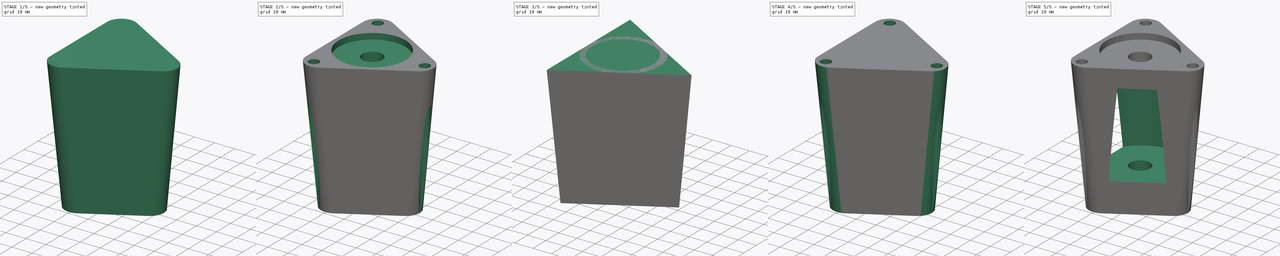
[diagram: build sequence overview — one tinted view per stage of 5, left to right]
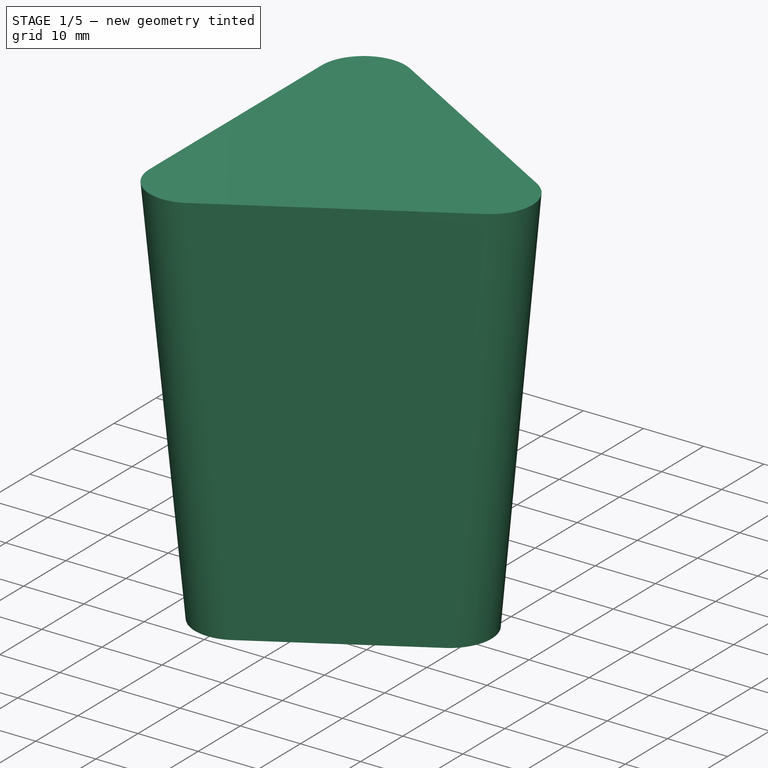
[diagram: stage 1 of 5 — iso view after this stage's code; geometry added in this stage tinted green]
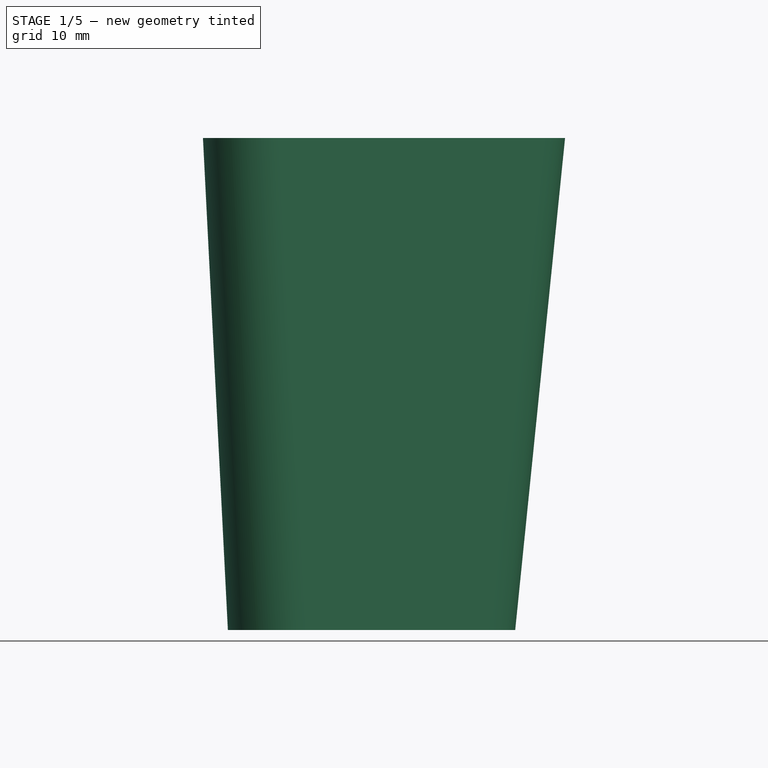
[diagram: stage 1 of 5 — front view after this stage's code; geometry added in this stage tinted green]
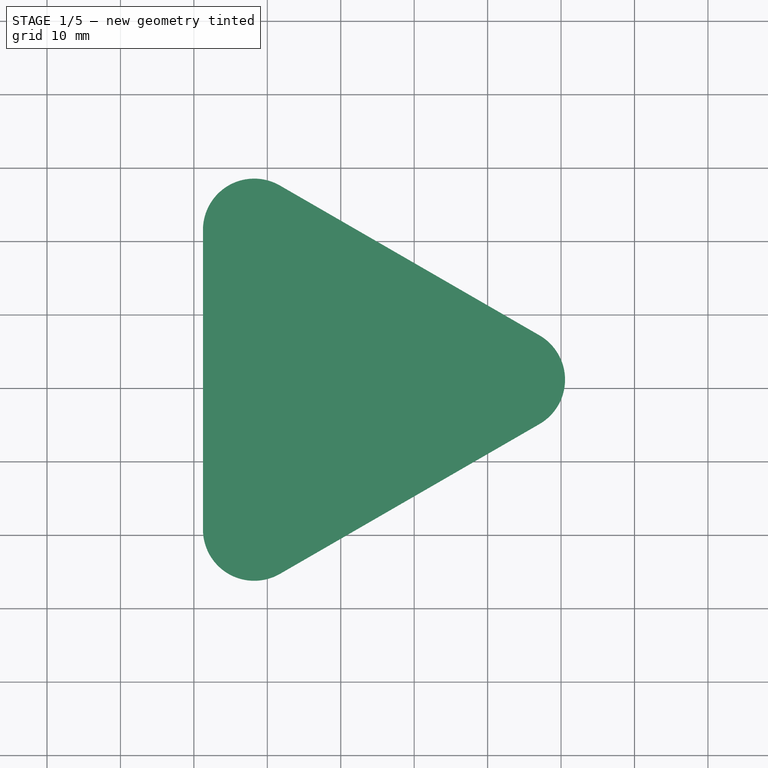
[diagram: stage 1 of 5 — top view after this stage's code; geometry added in this stage tinted green]
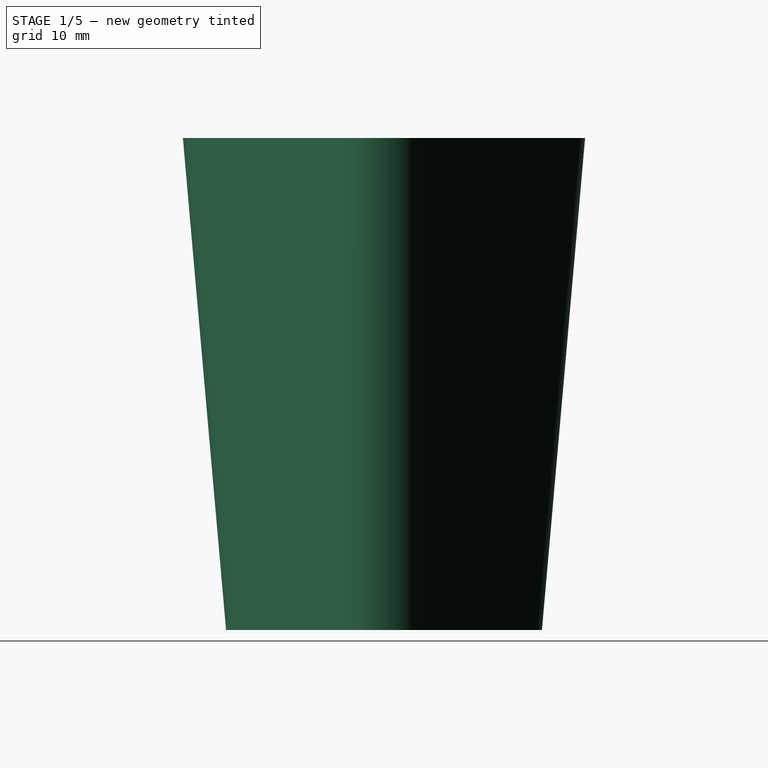
[diagram: stage 1 of 5 — right view after this stage's code; geometry added in this stage tinted green]
FCSTD DOCUMENT  (FreeCAD 0.15R4671 (Git))
Label: Tri-Foot-1
License: All rights reserved
LicenseURL: http://en.wikipedia.org/wiki/All_rights_reserved
objects: Sketcher::SketchObject×14, PartDesign::Pocket×11, PartDesign::Fillet×6, PartDesign::Pad×2, PartDesign::Draft×2, Part::Cut×1, Part::MultiFuse×1
note: 50 computed .brp shape members not serialized (recipe doc carries the construction recipe); baked Part::Feature solids carry a one-line shape summary decoded from their .brp

FEATURE [Sketcher::SketchObject] Sketch  label="base"
  sketch-geometry (4):
    g0: LineSegment StartX=37.5278 StartY=0 StartZ=0 EndX=-18.7639 EndY=32.5 EndZ=0
    g1: LineSegment StartX=-18.7639 StartY=32.5 StartZ=0 EndX=-18.7639 EndY=-32.5 EndZ=0
    g2: LineSegment StartX=-18.7639 StartY=-32.5 StartZ=0 EndX=37.5278 EndY=0 EndZ=0
    g3: Circle [constr] CenterX=0 CenterY=0 CenterZ=0 NormalX=0 NormalY=0 NormalZ=1 Radius=37.5278
  constraints (11):
    c: Coincident(g0,g1)
    c: Coincident(g1,g2)
    c: Coincident(g2,g0)
    c: Equal(g0,g1)
    c: Equal(g0,g2)
    c: PointOnObject(g0,g3)
    c: PointOnObject(g1,g3)
    c: PointOnObject(g2,g3)
    c: DistanceY(g1) = -65
    c: Coincident(g-1,g3)
    c: Vertical(g1)
FEATURE [Sketcher::SketchObject] Sketch001  label="top"
  sketch-geometry (4):
    g0: LineSegment StartX=-10 StartY=10 StartZ=0 EndX=10 EndY=10 EndZ=0
    g1: LineSegment StartX=10 StartY=10 StartZ=0 EndX=10 EndY=-10 EndZ=0
    g2: LineSegment StartX=10 StartY=-10 StartZ=0 EndX=-10 EndY=-10 EndZ=0
    g3: LineSegment StartX=-10 StartY=-10 StartZ=0 EndX=-10 EndY=10 EndZ=0
  constraints (14):
    c: Coincident(g0,g1)
    c: Coincident(g1,g2)
    c: Coincident(g2,g3)
    c: Coincident(g3,g0)
    c: Horizontal(g0)
    c: Horizontal(g2)
    c: Vertical(g1)
    c: Vertical(g3)
    c: Symmetric(g0,g2,g-1)
    c: Symmetric(g0,g0,g-2)
    c: DistanceX(g2) = -20
    c: Equal(g1,g0)
    c: Equal(g0,g3)
    c: Equal(g3,g2)
FEATURE [PartDesign::Pad] Pad
  Length = 67
  Length2 = 100
  Sketch = -> Sketch
  Type = 0
FEATURE [PartDesign::Draft] Draft
  Angle = 2.9
  Base = -> Pad [Face2,Face1,Face3]
  NeutralPlane = -> Pad [Face5]
FEATURE [PartDesign::Fillet] Fillet
  Base = -> Draft [Edge2]
  Radius = 7
FEATURE [PartDesign::Fillet] Fillet001
  Base = -> Fillet [Edge10]
  Radius = 7
FEATURE [PartDesign::Fillet] Fillet002
  Base = -> Fillet001 [Edge7]
  Radius = 7
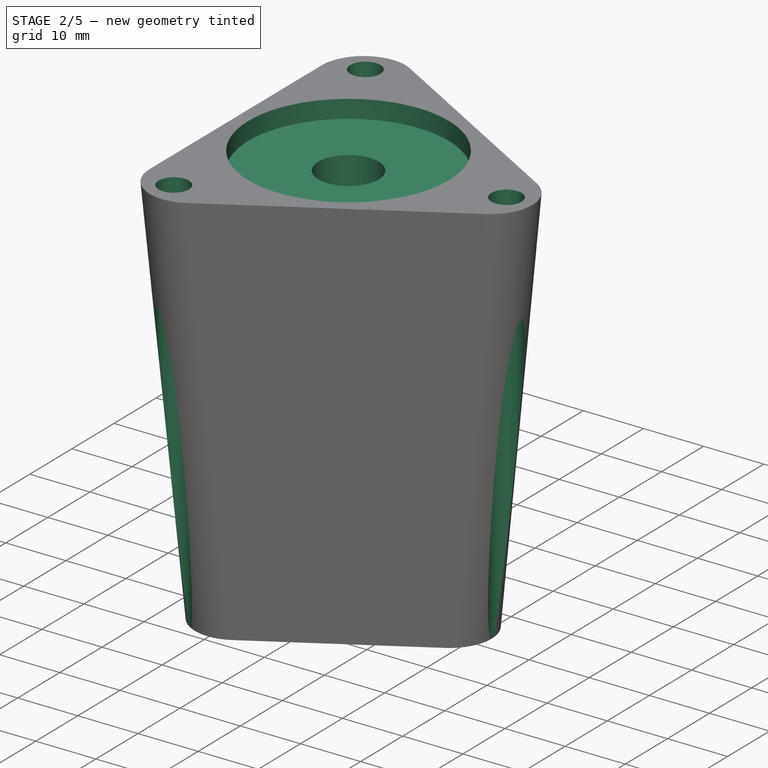
[diagram: stage 2 of 5 — iso view after this stage's code; geometry added in this stage tinted green]
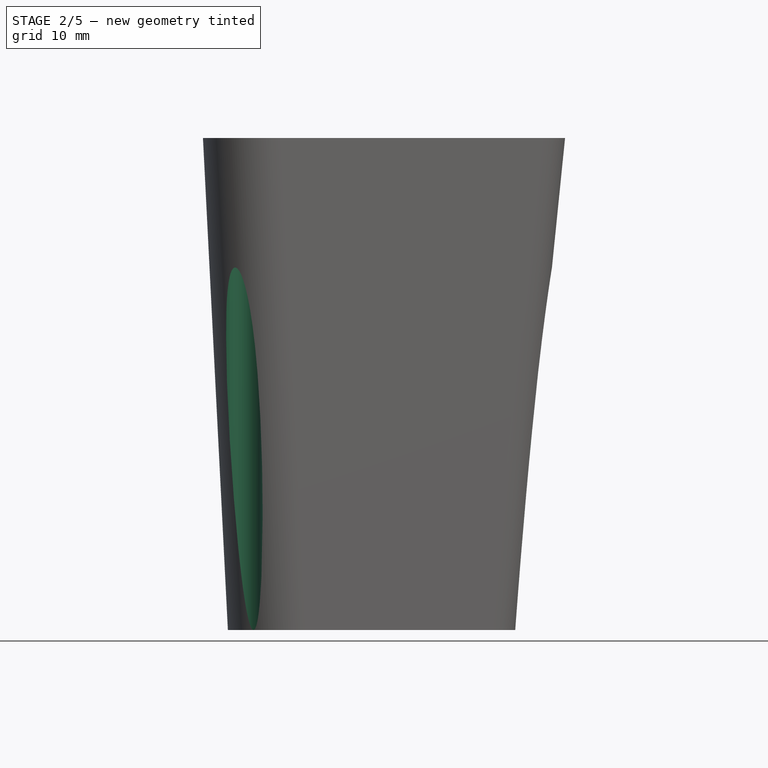
[diagram: stage 2 of 5 — front view after this stage's code; geometry added in this stage tinted green]
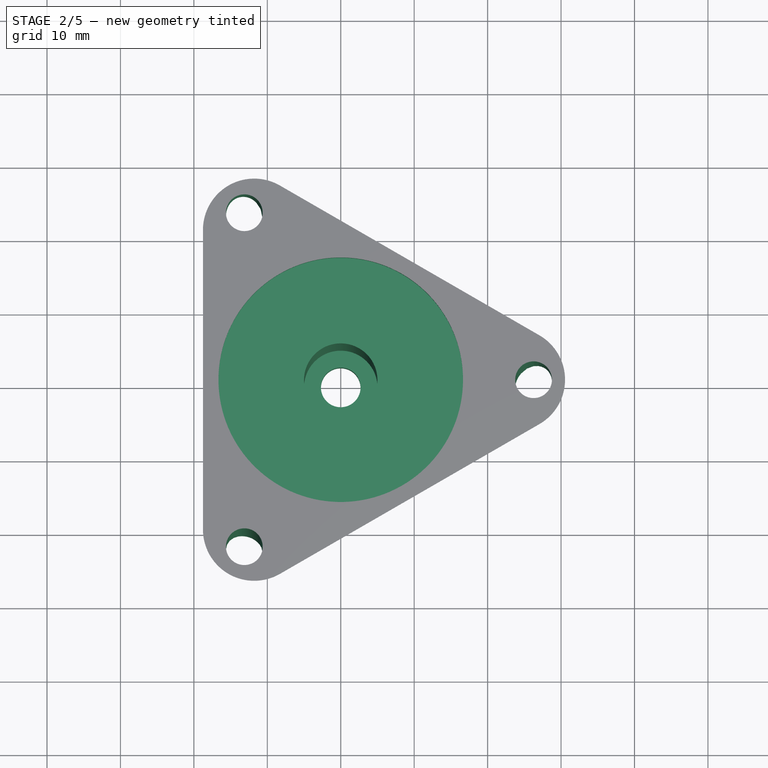
[diagram: stage 2 of 5 — top view after this stage's code; geometry added in this stage tinted green]
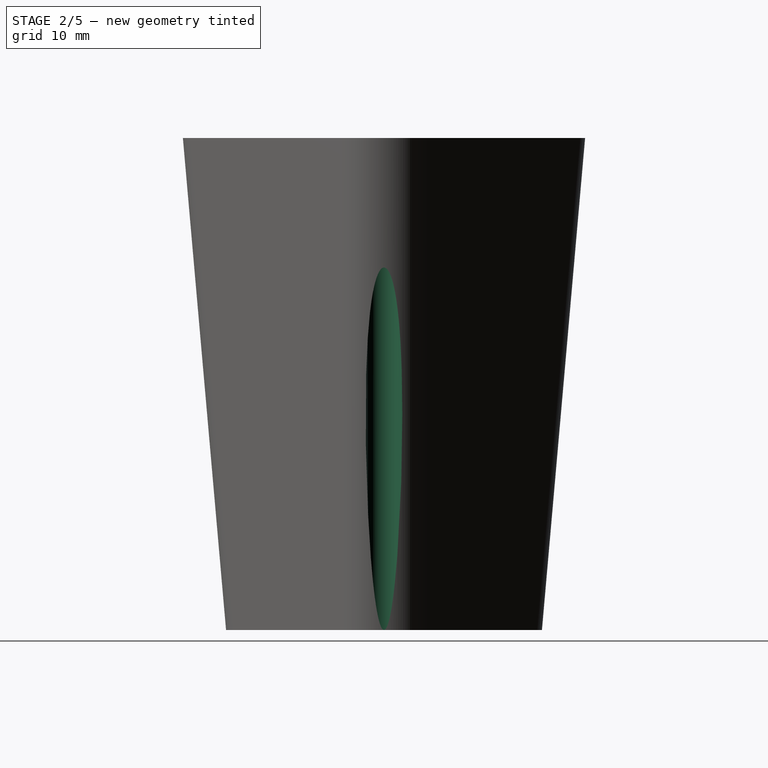
[diagram: stage 2 of 5 — right view after this stage's code; geometry added in this stage tinted green]
FEATURE [Sketcher::SketchObject] Sketch002
  ExternalGeometry = -> [Draft]
  Placement = pos=(0,0,67) rot=(0,0,1;0rad)
  Support = -> Fillet002 [Face8]
  sketch-geometry (7):
    g0: LineSegment [constr] StartX=-13.1294 StartY=22.7408 StartZ=0 EndX=-13.1294 EndY=-22.7408 EndZ=0
    g1: LineSegment [constr] StartX=-13.1294 StartY=-22.7408 StartZ=0 EndX=26.2588 EndY=0 EndZ=0
    g2: LineSegment [constr] StartX=26.2588 StartY=0 StartZ=0 EndX=-13.1294 EndY=22.7408 EndZ=0
    g3: Circle [constr] CenterX=0 CenterY=0 CenterZ=0 NormalX=0 NormalY=0 NormalZ=1 Radius=26.2588
    g4: Circle CenterX=-13.1294 CenterY=-22.7408 CenterZ=0 NormalX=0 NormalY=0 NormalZ=1 Radius=2.5
    g5: Circle CenterX=26.2588 CenterY=0 CenterZ=0 NormalX=0 NormalY=0 NormalZ=1 Radius=2.5
    g6: Circle CenterX=-13.1294 CenterY=22.7408 CenterZ=0 NormalX=0 NormalY=0 NormalZ=1 Radius=2.5
  constraints (16):
    c: Coincident(g0,g1)
    c: Coincident(g1,g2)
    c: Coincident(g2,g0)
    c: Equal(g0,g1)
    c: Equal(g0,g2)
    c: PointOnObject(g0,g3)
    c: PointOnObject(g1,g3)
    c: PointOnObject(g2,g3)
    c: Coincident(g3,g-1)
    c: Radius(g4) = 2.5
    c: Coincident(g0,g4)
    c: Coincident(g0,g6)
    c: Coincident(g1,g5)
    c: Equal(g4,g6)
    c: Equal(g6,g5)
    c: Parallel(g2,g-3)
FEATURE [PartDesign::Pocket] Pocket
  Length = 70
  Sketch = -> Sketch002
  Type = 0
FEATURE [Sketcher::SketchObject] Sketch003
  Placement = pos=(0,0,0) rot=(1,0,0;3.14159rad)
  Support = -> Pocket [Face1]
  sketch-geometry (1):
    g0: Circle CenterX=0 CenterY=0 CenterZ=0 NormalX=0 NormalY=0 NormalZ=1 Radius=2.7
  constraints (2):
    c: Coincident(g0,g-1)
    c: Radius(g0) = 2.7
FEATURE [PartDesign::Pocket] Pocket001
  Length = 70
  Sketch = -> Sketch003
  Type = 0
FEATURE [Sketcher::SketchObject] Sketch004
  Placement = pos=(0,0,67) rot=(0,0,1;0rad)
  Support = -> Pocket001 [Face9]
  sketch-geometry (1):
    g0: Circle CenterX=0 CenterY=0 CenterZ=0 NormalX=0 NormalY=0 NormalZ=1 Radius=5
  constraints (2):
    c: Coincident(g0,g-1)
    c: Radius(g0) = 5
FEATURE [PartDesign::Pocket] Pocket002
  Length = 60
  Sketch = -> Sketch004
  Type = 0
FEATURE [Sketcher::SketchObject] Sketch005
  Placement = pos=(0,0,67) rot=(0,0,1;0rad)
  Support = -> Pocket002 [Face9]
  sketch-geometry (1):
    g0: Circle CenterX=0 CenterY=0 CenterZ=0 NormalX=0 NormalY=0 NormalZ=1 Radius=16.6531
  constraints (1):
    c: Coincident(g0,g-1)
FEATURE [PartDesign::Pocket] Pocket003
  Length = 3
  Sketch = -> Sketch005
  Type = 0
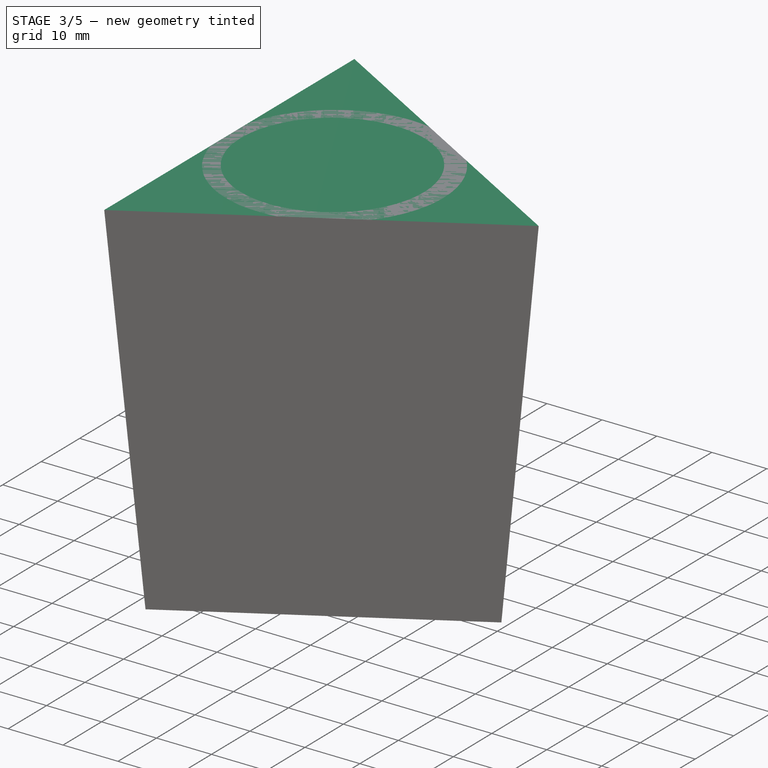
[diagram: stage 3 of 5 — iso view after this stage's code; geometry added in this stage tinted green]
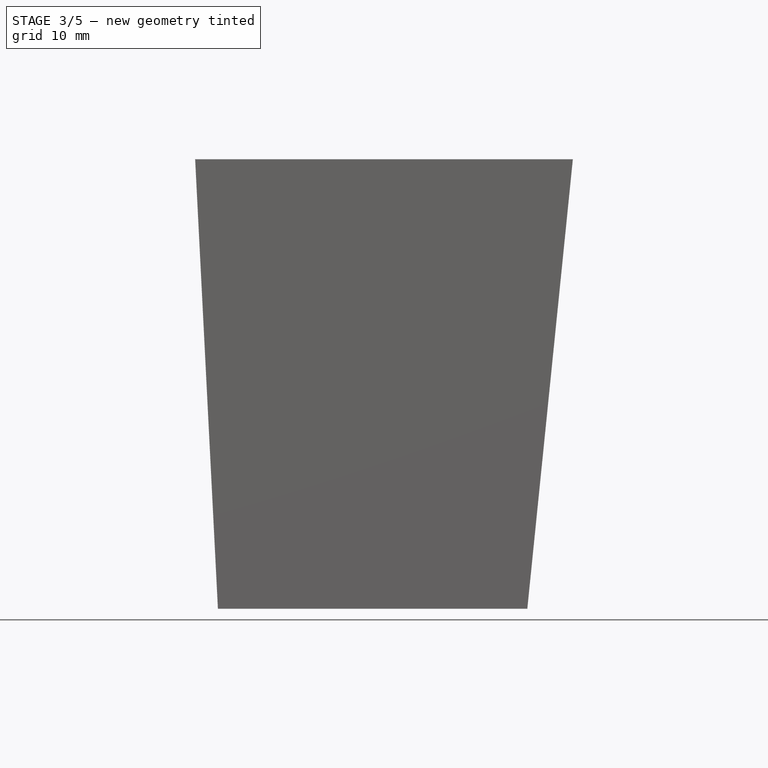
[diagram: stage 3 of 5 — front view after this stage's code; geometry added in this stage tinted green]
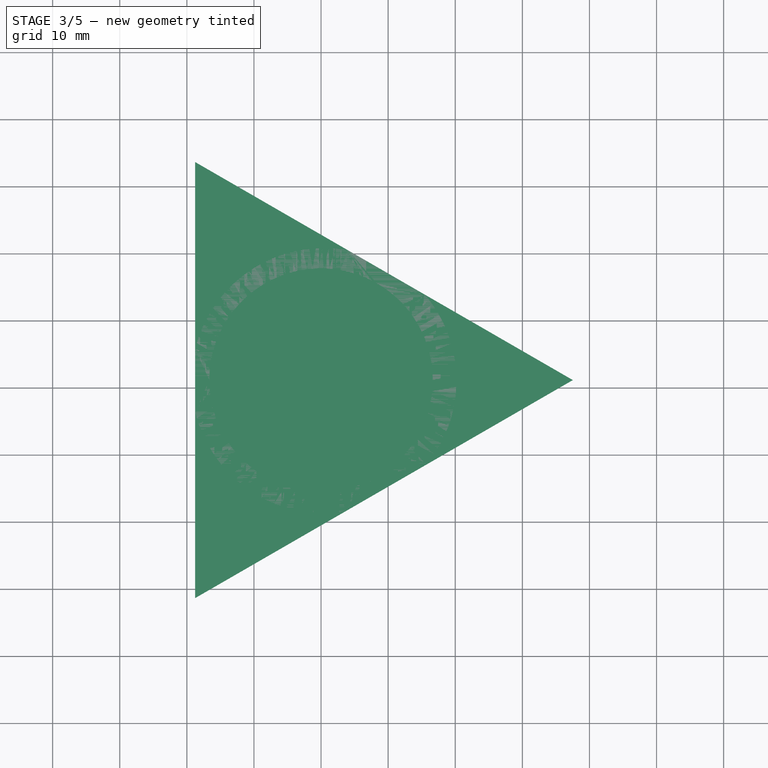
[diagram: stage 3 of 5 — top view after this stage's code; geometry added in this stage tinted green]
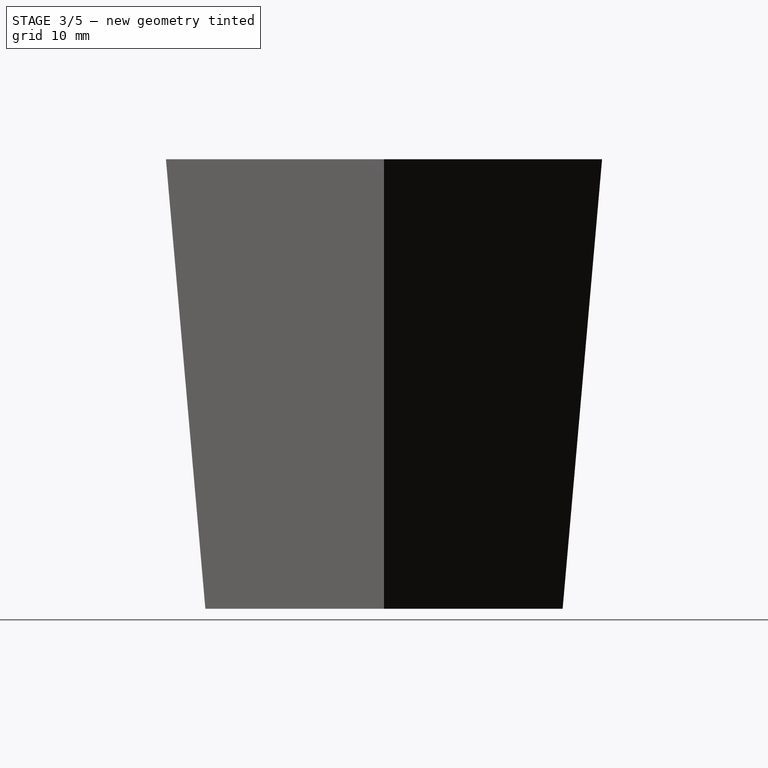
[diagram: stage 3 of 5 — right view after this stage's code; geometry added in this stage tinted green]
FEATURE [Sketcher::SketchObject] Sketch006
  Placement = pos=(0,0,67) rot=(0,0,1;0rad)
  Support = -> Pocket003 [Face9]
  sketch-geometry (1):
    g0: Circle CenterX=0.434124 CenterY=-0.074466 CenterZ=0 NormalX=0 NormalY=0 NormalZ=1 Radius=19.7528
FEATURE [PartDesign::Pocket] Pocket004
  Length = 52
  Sketch = -> Sketch006
  Type = 0
FEATURE [Part::Cut] Cut
  Base = -> Pocket003
  Tool = -> Pocket004
FEATURE [Sketcher::SketchObject] Sketch007  label="base001"
  sketch-geometry (4):
    g0: LineSegment StartX=37.5278 StartY=0 StartZ=0 EndX=-18.7639 EndY=32.5 EndZ=0
    g1: LineSegment StartX=-18.7639 StartY=32.5 StartZ=0 EndX=-18.7639 EndY=-32.5 EndZ=0
    g2: LineSegment StartX=-18.7639 StartY=-32.5 StartZ=0 EndX=37.5278 EndY=0 EndZ=0
    g3: Circle [constr] CenterX=0 CenterY=0 CenterZ=0 NormalX=0 NormalY=0 NormalZ=1 Radius=37.5278
  constraints (11):
    c: Coincident(g0,g1)
    c: Coincident(g1,g2)
    c: Coincident(g2,g0)
    c: Equal(g0,g1)
    c: Equal(g0,g2)
    c: PointOnObject(g0,g3)
    c: PointOnObject(g1,g3)
    c: PointOnObject(g2,g3)
    c: DistanceY(g1) = -65
    c: Coincident(g-1,g3)
    c: Vertical(g1)
FEATURE [PartDesign::Pad] Pad001
  Length = 67
  Length2 = 100
  Sketch = -> Sketch007
  Type = 0
FEATURE [PartDesign::Draft] Draft001
  Angle = 2.9
  Base = -> Pad001 [Face2,Face1,Face3]
  NeutralPlane = -> Pad001 [Face5]
FEATURE [Sketcher::SketchObject] Sketch013
  Placement = pos=(0,0,15) rot=(1,0,0;3.14159rad)
  Support = -> Cut [Face3]
  sketch-geometry (1):
    g0: Circle CenterX=0 CenterY=0 CenterZ=0 NormalX=0 NormalY=0 NormalZ=1 Radius=30.2565
FEATURE [PartDesign::Pocket] Pocket010
  Length = 43
  Sketch = -> Sketch013
  Type = 0
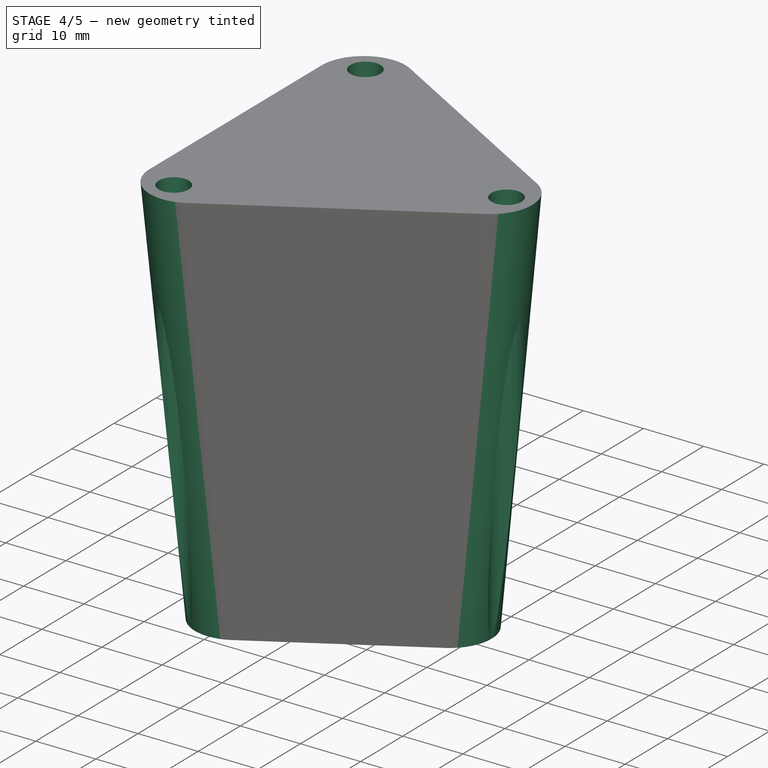
[diagram: stage 4 of 5 — iso view after this stage's code; geometry added in this stage tinted green]
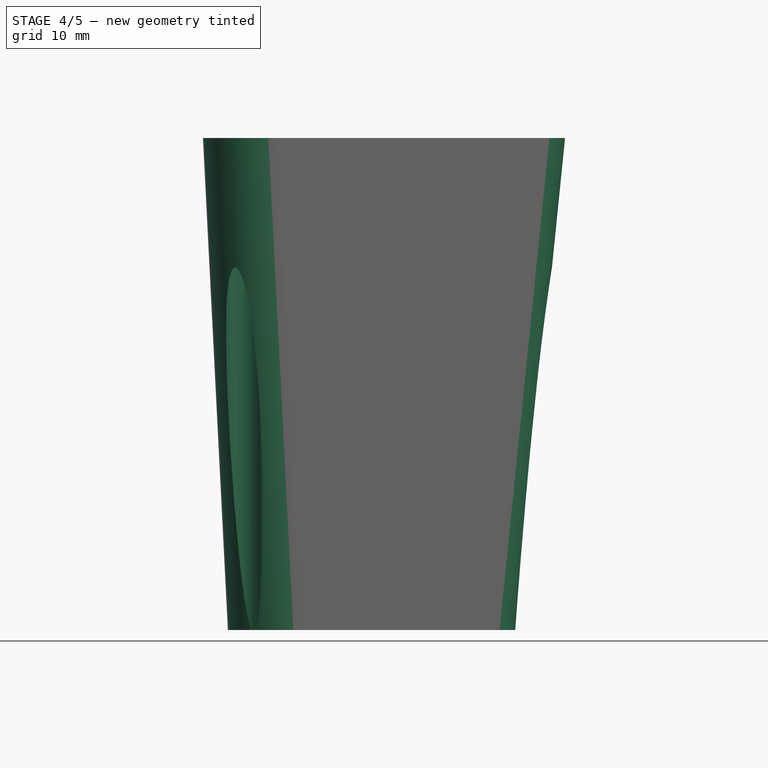
[diagram: stage 4 of 5 — front view after this stage's code; geometry added in this stage tinted green]
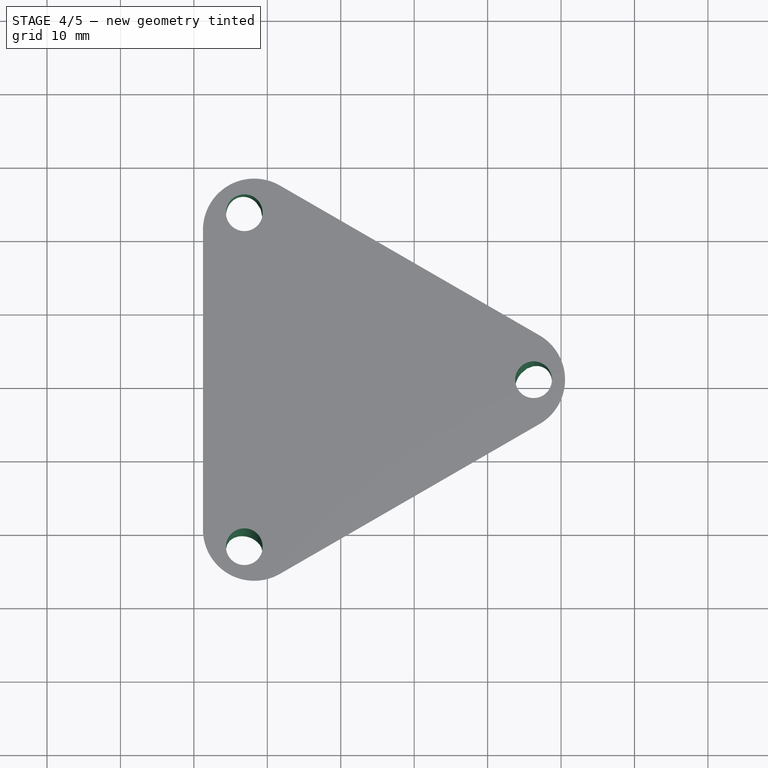
[diagram: stage 4 of 5 — top view after this stage's code; geometry added in this stage tinted green]
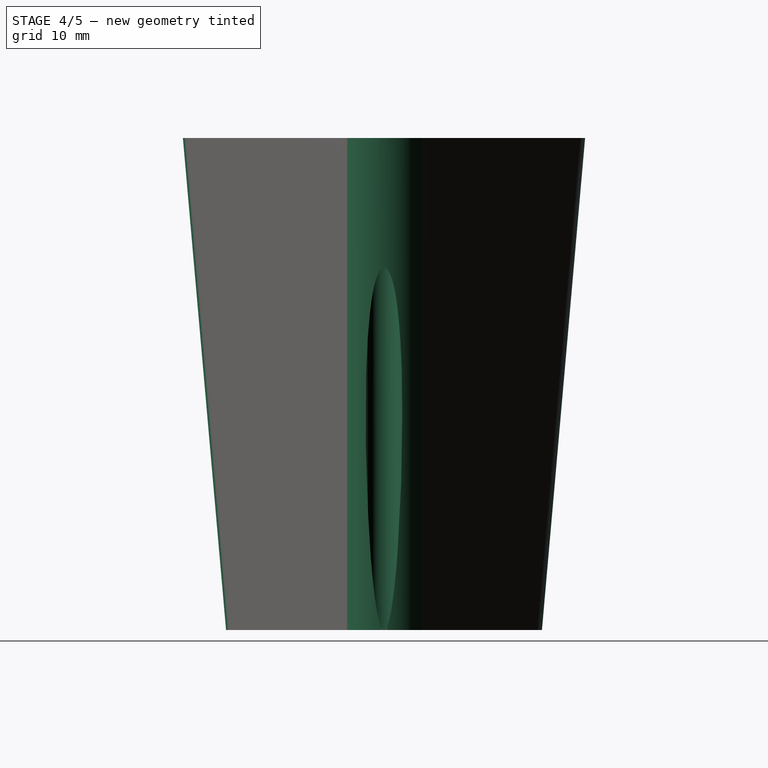
[diagram: stage 4 of 5 — right view after this stage's code; geometry added in this stage tinted green]
FEATURE [PartDesign::Fillet] Fillet003
  Base = -> Draft001 [Edge2]
  Radius = 7
FEATURE [PartDesign::Fillet] Fillet004
  Base = -> Fillet003 [Edge10]
  Radius = 7
FEATURE [PartDesign::Fillet] Fillet005
  Base = -> Fillet004 [Edge7]
  Radius = 7
FEATURE [Sketcher::SketchObject] Sketch008
  ExternalGeometry = -> [Draft001]
  Placement = pos=(0,0,67) rot=(0,0,1;0rad)
  Support = -> Fillet005 [Face8]
  sketch-geometry (7):
    g0: LineSegment [constr] StartX=-13.1294 StartY=22.7408 StartZ=0 EndX=-13.1294 EndY=-22.7408 EndZ=0
    g1: LineSegment [constr] StartX=-13.1294 StartY=-22.7408 StartZ=0 EndX=26.2588 EndY=0 EndZ=0
    g2: LineSegment [constr] StartX=26.2588 StartY=0 StartZ=0 EndX=-13.1294 EndY=22.7408 EndZ=0
    g3: Circle [constr] CenterX=0 CenterY=0 CenterZ=0 NormalX=0 NormalY=0 NormalZ=1 Radius=26.2588
    g4: Circle CenterX=-13.1294 CenterY=-22.7408 CenterZ=0 NormalX=0 NormalY=0 NormalZ=1 Radius=2.5
    g5: Circle CenterX=26.2588 CenterY=0 CenterZ=0 NormalX=0 NormalY=0 NormalZ=1 Radius=2.5
    g6: Circle CenterX=-13.1294 CenterY=22.7408 CenterZ=0 NormalX=0 NormalY=0 NormalZ=1 Radius=2.5
  constraints (16):
    c: Coincident(g0,g1)
    c: Coincident(g1,g2)
    c: Coincident(g2,g0)
    c: Equal(g0,g1)
    c: Equal(g0,g2)
    c: PointOnObject(g0,g3)
    c: PointOnObject(g1,g3)
    c: PointOnObject(g2,g3)
    c: Coincident(g3,g-1)
    c: Radius(g4) = 2.5
    c: Coincident(g0,g4)
    c: Coincident(g0,g6)
    c: Coincident(g1,g5)
    c: Equal(g4,g6)
    c: Equal(g6,g5)
    c: Parallel(g2,g-3)
FEATURE [PartDesign::Pocket] Pocket005
  Length = 70
  Sketch = -> Sketch008
  Type = 0
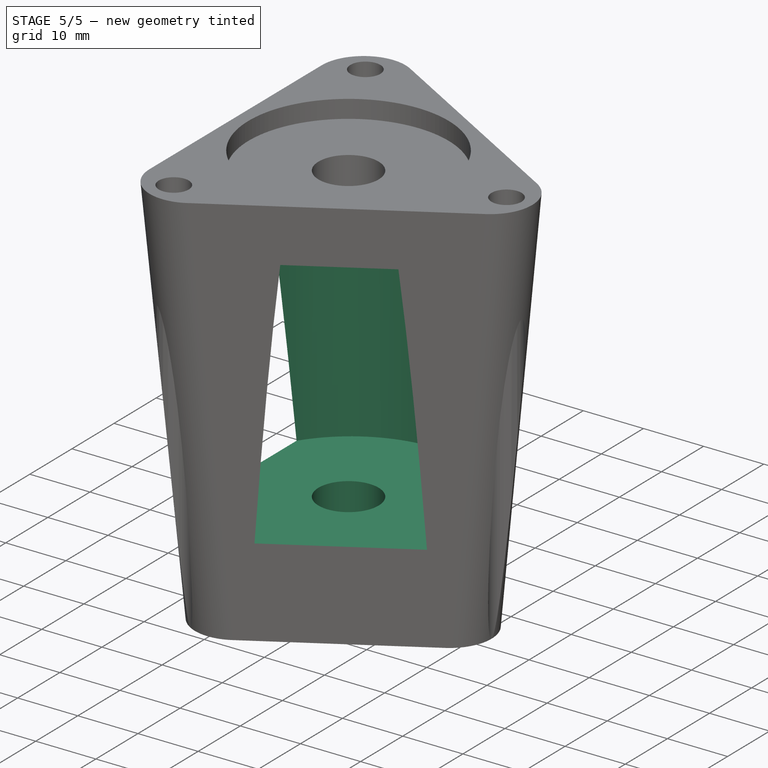
[diagram: stage 5 of 5 — iso view after this stage's code; geometry added in this stage tinted green]
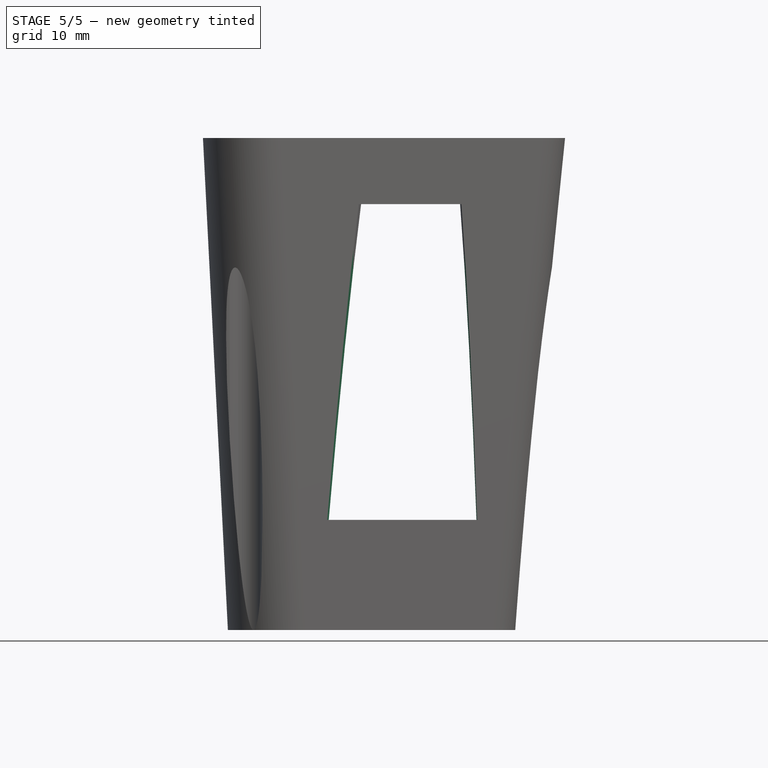
[diagram: stage 5 of 5 — front view after this stage's code; geometry added in this stage tinted green]
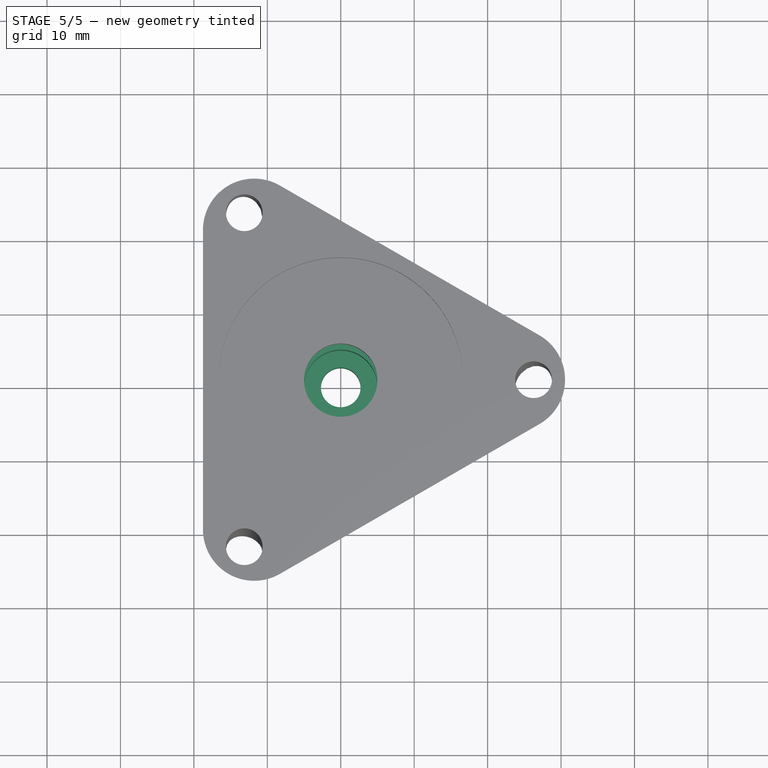
[diagram: stage 5 of 5 — top view after this stage's code; geometry added in this stage tinted green]
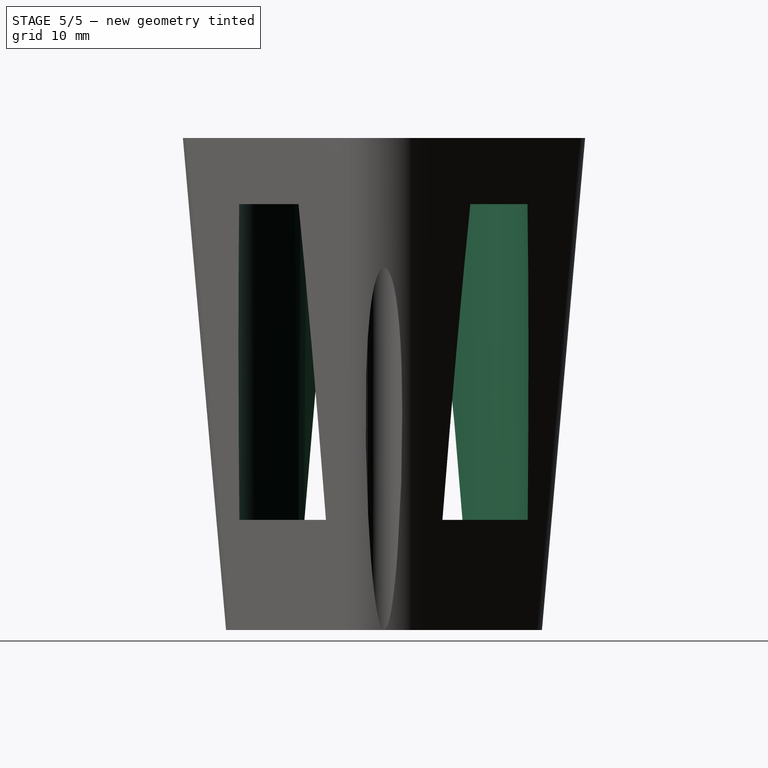
[diagram: stage 5 of 5 — right view after this stage's code; geometry added in this stage tinted green]
FEATURE [Sketcher::SketchObject] Sketch009
  Placement = pos=(0,0,0) rot=(1,0,0;3.14159rad)
  Support = -> Pocket005 [Face1]
  sketch-geometry (1):
    g0: Circle CenterX=0 CenterY=0 CenterZ=0 NormalX=0 NormalY=0 NormalZ=1 Radius=2.7
  constraints (2):
    c: Coincident(g0,g-1)
    c: Radius(g0) = 2.7
FEATURE [PartDesign::Pocket] Pocket006
  Length = 70
  Sketch = -> Sketch009
  Type = 0
FEATURE [Sketcher::SketchObject] Sketch010
  Placement = pos=(0,0,67) rot=(0,0,1;0rad)
  Support = -> Pocket006 [Face9]
  sketch-geometry (1):
    g0: Circle CenterX=0 CenterY=0 CenterZ=0 NormalX=0 NormalY=0 NormalZ=1 Radius=5
  constraints (2):
    c: Coincident(g0,g-1)
    c: Radius(g0) = 5
FEATURE [PartDesign::Pocket] Pocket007
  Length = 60
  Sketch = -> Sketch010
  Type = 0
FEATURE [Sketcher::SketchObject] Sketch011
  Placement = pos=(0,0,67) rot=(0,0,1;0rad)
  Support = -> Pocket007 [Face9]
  sketch-geometry (1):
    g0: Circle CenterX=0 CenterY=0 CenterZ=0 NormalX=0 NormalY=0 NormalZ=1 Radius=16.6531
  constraints (1):
    c: Coincident(g0,g-1)
FEATURE [PartDesign::Pocket] Pocket008
  Length = 3
  Sketch = -> Sketch011
  Type = 0
FEATURE [Sketcher::SketchObject] Sketch012
  Placement = pos=(0,0,67) rot=(0,0,1;0rad)
  Support = -> Pocket008 [Face9]
  sketch-geometry (1):
    g0: Circle CenterX=0.434124 CenterY=-0.074466 CenterZ=0 NormalX=0 NormalY=0 NormalZ=1 Radius=19.7528
FEATURE [PartDesign::Pocket] Pocket009
  Length = 52
  Sketch = -> Sketch012
  Type = 0
FEATURE [Part::MultiFuse] Fusion
  Shapes = -> [Pocket009,Pocket010]
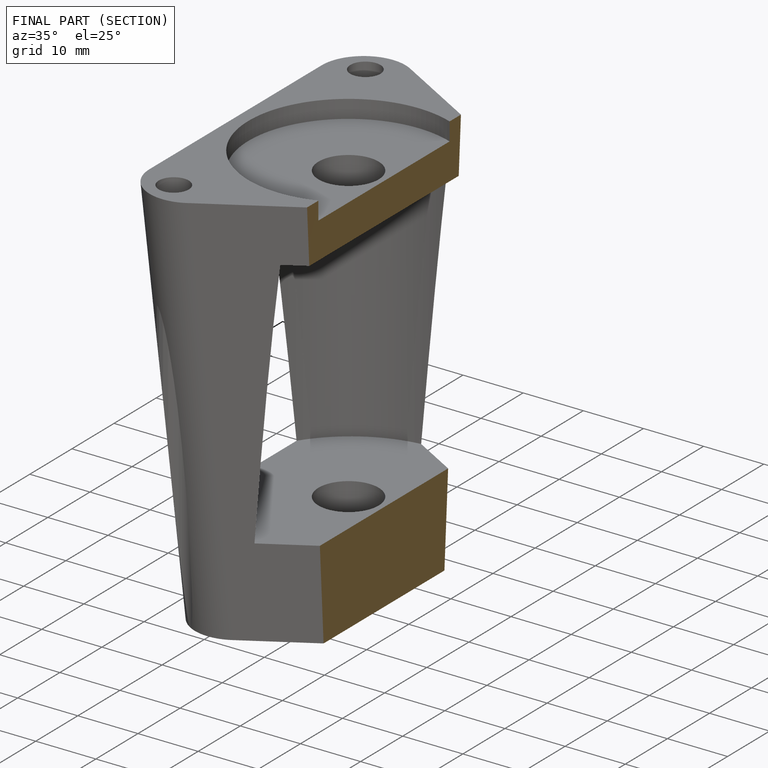
[diagram: finished part — half-section view (interior)]
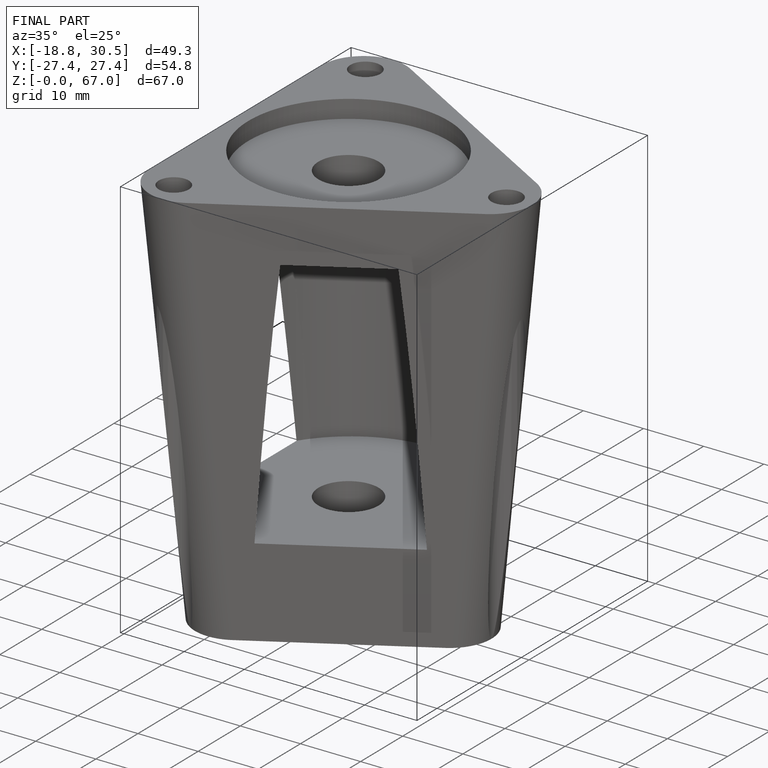
[diagram: finished part — iso view with bounding-box wireframe]
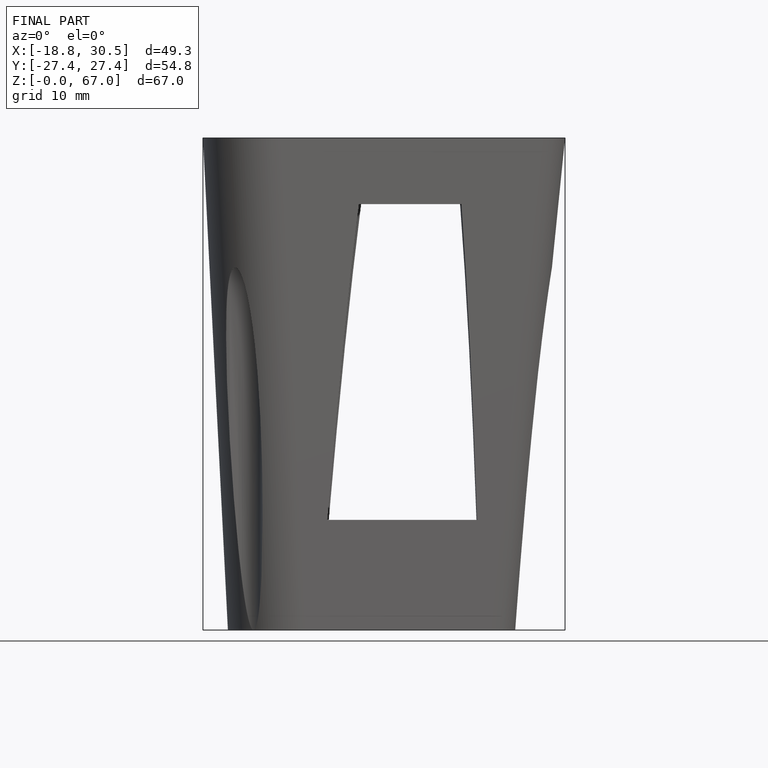
[diagram: finished part — front view with bounding-box wireframe]
